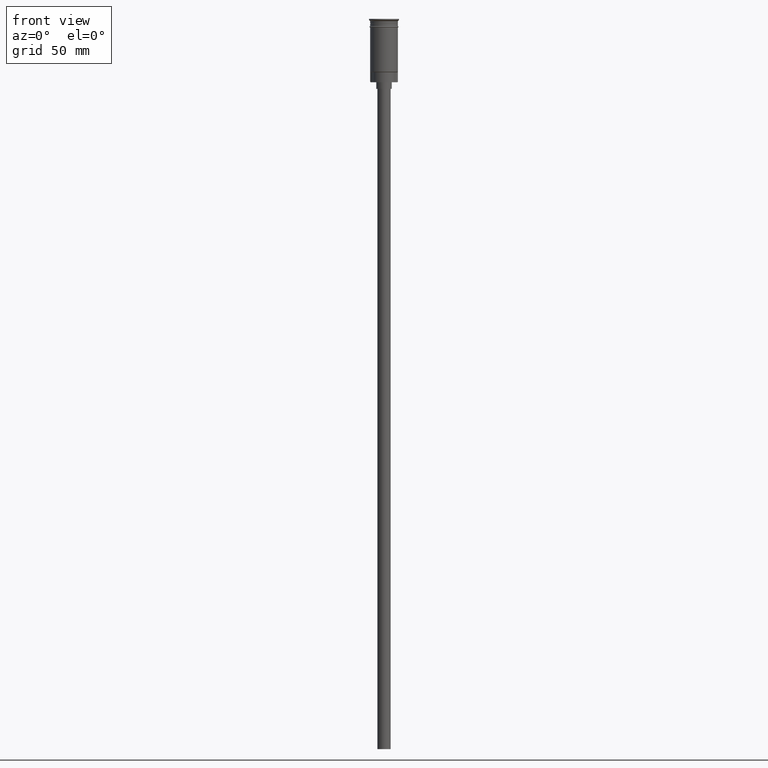
[diagram: clean part render]
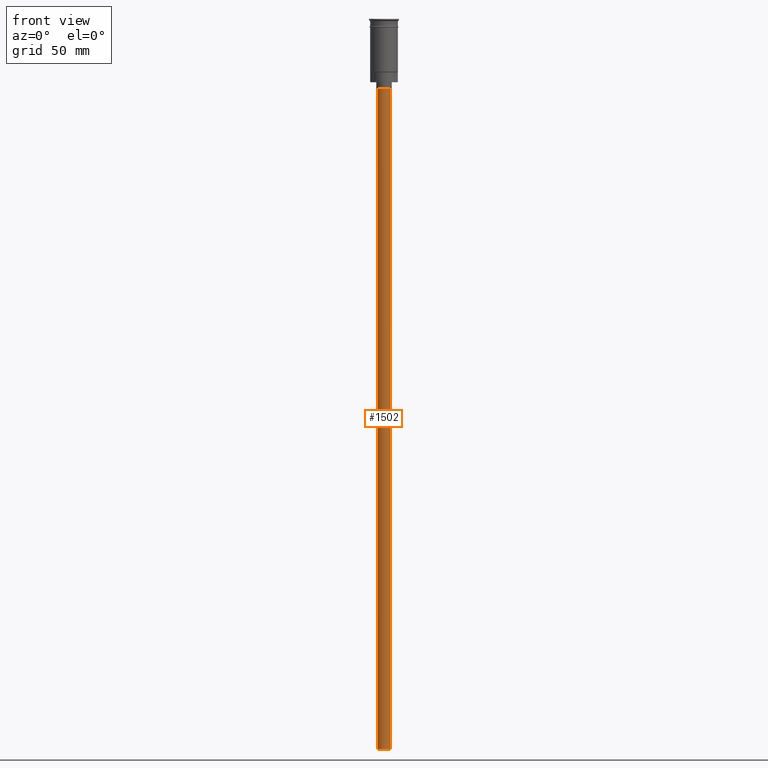
[diagram: same view with one face highlighted and labeled with its STEP entity id]
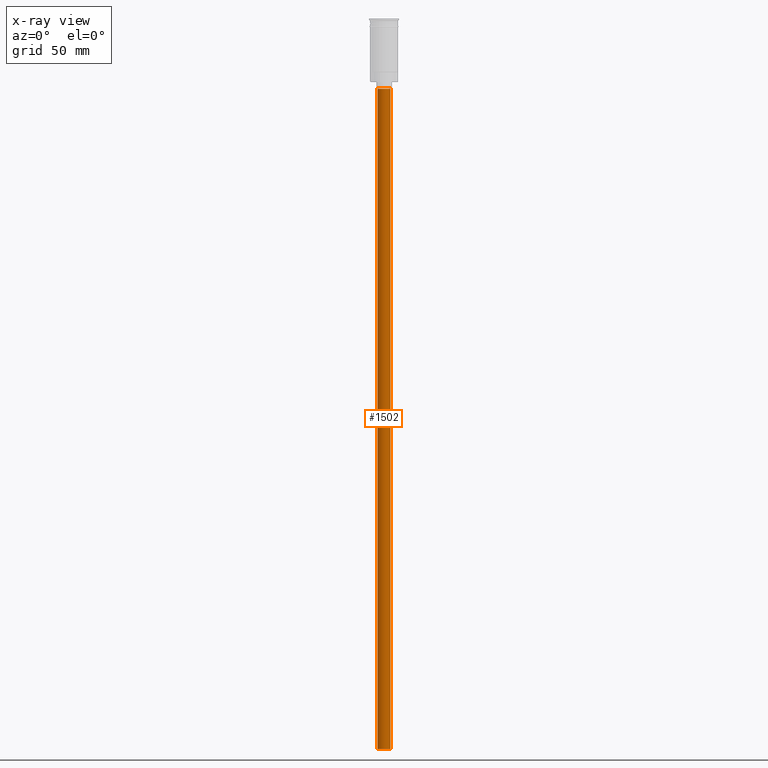
[diagram: x-ray of the same camera — body ghosted, the highlighted face saturated]
A machine part, front view. The second image highlights one B-rep face of the part: STEP entity #1502.
The next image is the same camera in x-ray: the body ghosted, the highlighted face saturated — about 0% of this face is hidden behind the body in this view.
In plain terms, the highlighted cylindrical surface (edge-blend (fillet) strip) has radius 3 mm, axis along (-0, -0, 1).
Its self-contained STEP definition (entity closure, byte-faithful):
#14 = VECTOR ( 'NONE', #1347, 1000.000000000000000 ) ;
#86 = DIRECTION ( 'NONE',  ( 0.000000000000000000, 0.000000000000000000, -1.000000000000000000 ) ) ;
#148 = CARTESIAN_POINT ( 'NONE',  ( 0.000000000000000000, 0.000000000000000000, -328.5000000000000000 ) ) ;
#175 = EDGE_CURVE ( 'NONE', #503, #1230, #462, .T. ) ;
#189 = CARTESIAN_POINT ( 'NONE',  ( 0.000000000000000000, 0.000000000000000000, -328.5000000000000000 ) ) ;
#197 = CARTESIAN_POINT ( 'NONE',  ( -3.000000000000000444, 3.673940397442060361E-16, -31.50000000000000000 ) ) ;
#245 = VERTEX_POINT ( 'NONE', #679 ) ;
#250 = DIRECTION ( 'NONE',  ( -0.000000000000000000, -0.000000000000000000, 1.000000000000000000 ) ) ;
#276 = DIRECTION ( 'NONE',  ( 1.000000000000000000, 0.000000000000000000, 0.000000000000000000 ) ) ;
#287 = ORIENTED_EDGE ( 'NONE', *, *, #489, .F. ) ;
#308 = CARTESIAN_POINT ( 'NONE',  ( 3.000000000000000444, 0.000000000000000000, -31.50000000000000000 ) ) ;
#366 = AXIS2_PLACEMENT_3D ( 'NONE', #1453, #86, #1094 ) ;
#462 = CIRCLE ( 'NONE', #366, 3.000000000000000444 ) ;
#464 = AXIS2_PLACEMENT_3D ( 'NONE', #189, #1038, #554 ) ;
#465 = EDGE_LOOP ( 'NONE', ( #991, #287, #549, #1286 ) ) ;
#489 = EDGE_CURVE ( 'NONE', #245, #1219, #1257, .T. ) ;
#503 = VERTEX_POINT ( 'NONE', #308 ) ;
#549 = ORIENTED_EDGE ( 'NONE', *, *, #1361, .T. ) ;
#554 = DIRECTION ( 'NONE',  ( -1.000000000000000000, 0.000000000000000000, 0.000000000000000000 ) ) ;
#647 = DIRECTION ( 'NONE',  ( -0.000000000000000000, -0.000000000000000000, 1.000000000000000000 ) ) ;
#679 = CARTESIAN_POINT ( 'NONE',  ( 3.000000000000000444, 0.000000000000000000, -328.5000000000000000 ) ) ;
#692 = AXIS2_PLACEMENT_3D ( 'NONE', #148, #647, #276 ) ;
#987 = LINE ( 'NONE', #1343, #1250 ) ;
#991 = ORIENTED_EDGE ( 'NONE', *, *, #1003, .F. ) ;
#1003 = EDGE_CURVE ( 'NONE', #1219, #1230, #1569, .T. ) ;
#1011 = FACE_OUTER_BOUND ( 'NONE', #465, .T. ) ;
#1015 = CYLINDRICAL_SURFACE ( 'NONE', #692, 3.000000000000000444 ) ;
#1038 = DIRECTION ( 'NONE',  ( 0.000000000000000000, 0.000000000000000000, -1.000000000000000000 ) ) ;
#1087 = CARTESIAN_POINT ( 'NONE',  ( -3.000000000000000444, 3.673940397442060361E-16, -328.5000000000000000 ) ) ;
#1094 = DIRECTION ( 'NONE',  ( -1.000000000000000000, 0.000000000000000000, 0.000000000000000000 ) ) ;
#1219 = VERTEX_POINT ( 'NONE', #1426 ) ;
#1230 = VERTEX_POINT ( 'NONE', #197 ) ;
#1250 = VECTOR ( 'NONE', #250, 1000.000000000000000 ) ;
#1257 = CIRCLE ( 'NONE', #464, 3.000000000000000444 ) ;
#1286 = ORIENTED_EDGE ( 'NONE', *, *, #175, .T. ) ;
#1343 = CARTESIAN_POINT ( 'NONE',  ( 3.000000000000000444, 0.000000000000000000, -328.5000000000000000 ) ) ;
#1347 = DIRECTION ( 'NONE',  ( -0.000000000000000000, -0.000000000000000000, 1.000000000000000000 ) ) ;
#1361 = EDGE_CURVE ( 'NONE', #245, #503, #987, .T. ) ;
#1426 = CARTESIAN_POINT ( 'NONE',  ( -3.000000000000000444, 3.673940397442060361E-16, -328.5000000000000000 ) ) ;
#1453 = CARTESIAN_POINT ( 'NONE',  ( 0.000000000000000000, 0.000000000000000000, -31.50000000000000000 ) ) ;
#1502 = ADVANCED_FACE ( 'NONE', ( #1011 ), #1015, .T. ) ;
#1569 = LINE ( 'NONE', #1087, #14 ) ;